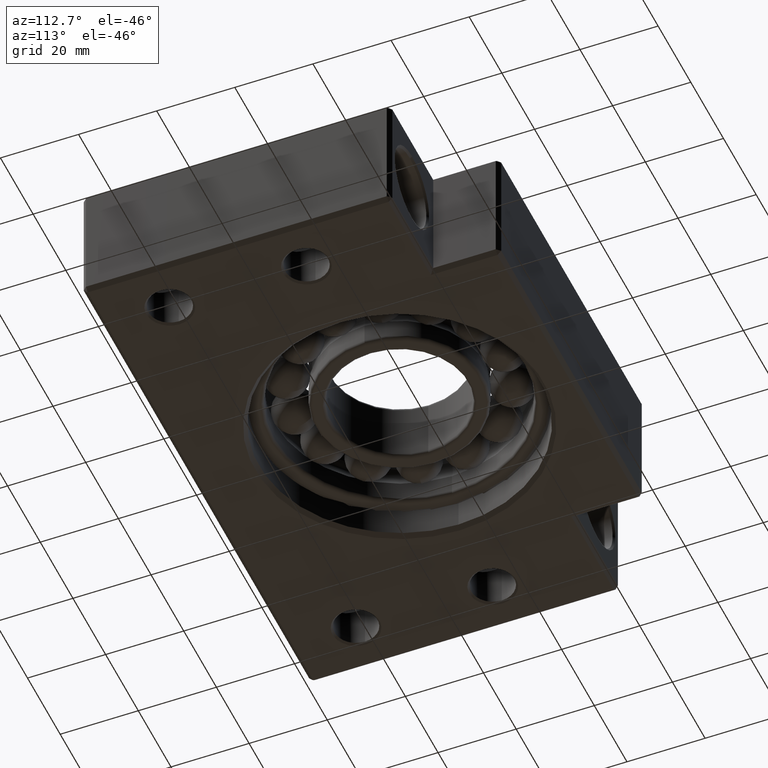
[diagram: clean part render]
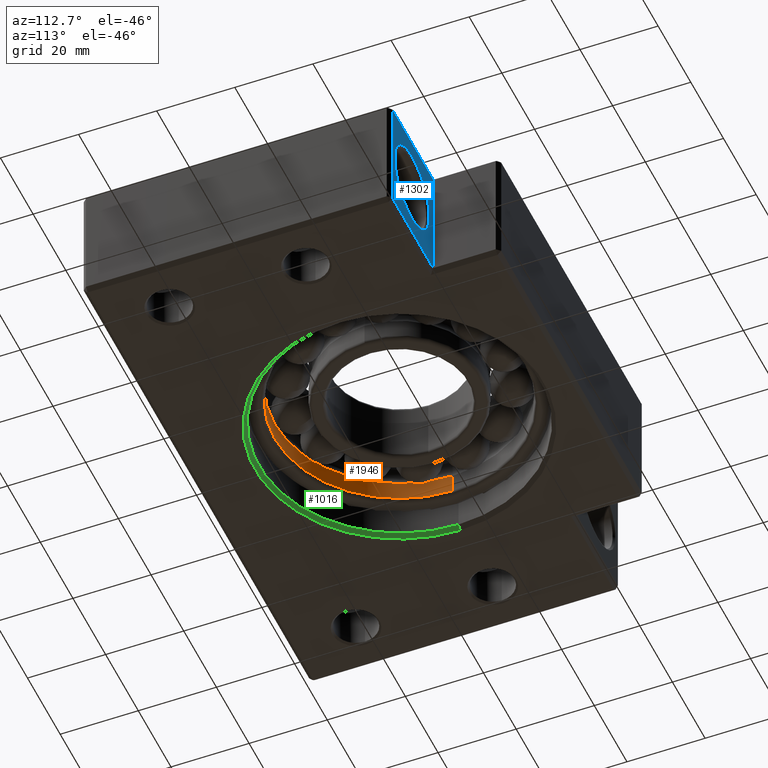
[diagram: same view with three faces highlighted in distinct colors, each labeled with its STEP entity id]
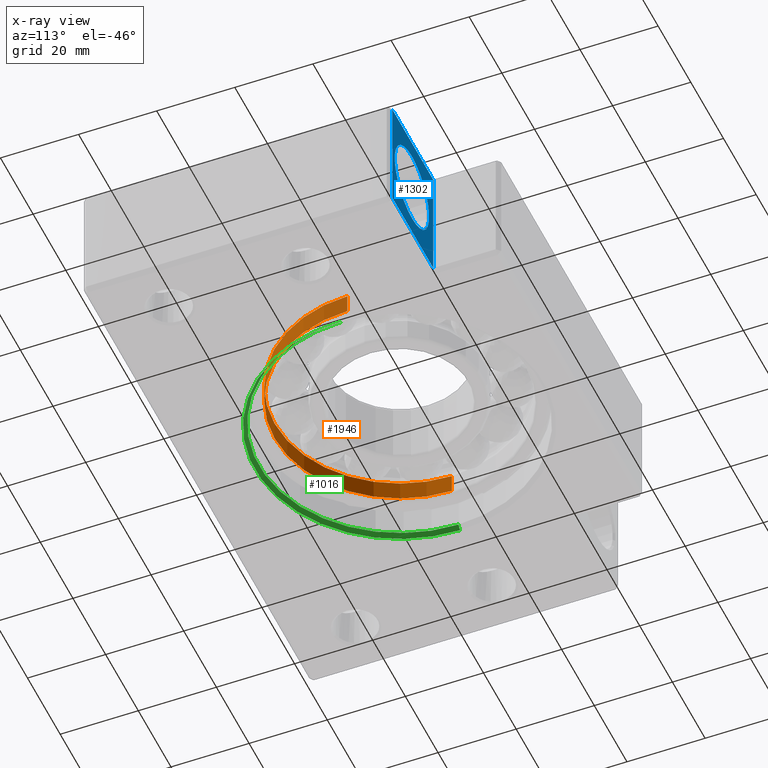
[diagram: x-ray of the same camera — body ghosted, the three highlighted faces saturated]
A machine part, auxiliary view with three faces highlighted in distinct colors.
The next image is the same camera in x-ray (body ghosted, the three faces saturated) — at least one of them is partly hidden behind the body in this view.
Their STEP definitions:

[orange] entity #1946 — the highlighted cylindrical surface (partial cylindrical patch) has radius 32 mm, axis along (-0, -0, 1).
#54 = CARTESIAN_POINT ( 'NONE',  ( -31.99999999999998600, 52.00000000000000000, -2.345207879911714900 ) ) ;
#83 = DIRECTION ( 'NONE',  ( 1.000000000000000000, 0.0000000000000000000, 0.0000000000000000000 ) ) ;
#84 = DIRECTION ( 'NONE',  ( -0.0000000000000000000, -0.0000000000000000000, 1.000000000000000000 ) ) ;
#85 = CARTESIAN_POINT ( 'NONE',  ( 1.387778780781445700E-014, 51.99999999999999300, -7.400000000000000400 ) ) ;
#86 = AXIS2_PLACEMENT_3D ( 'NONE', #85, #84, #83 ) ;
#87 = DIRECTION ( 'NONE',  ( 1.000000000000000000, 0.0000000000000000000, 0.0000000000000000000 ) ) ;
#88 = DIRECTION ( 'NONE',  ( -0.0000000000000000000, -0.0000000000000000000, 1.000000000000000000 ) ) ;
#89 = AXIS2_PLACEMENT_3D ( 'NONE', #92, #88, #87 ) ;
#90 = CYLINDRICAL_SURFACE ( 'NONE', #89, 32.00000000000000000 ) ;
#91 = CIRCLE ( 'NONE', #86, 32.00000000000000000 ) ;
#92 = CARTESIAN_POINT ( 'NONE',  ( 1.387778780781445700E-014, 51.99999999999999300, 8.839432060501899000 ) ) ;
#98 = FACE_OUTER_BOUND ( 'NONE', #1944, .T. ) ;
#136 = CARTESIAN_POINT ( 'NONE',  ( 32.00000000000001400, 51.99999999999999300, -2.345207879911714900 ) ) ;
#352 = DIRECTION ( 'NONE',  ( 1.000000000000000000, 0.0000000000000000000, 0.0000000000000000000 ) ) ;
#353 = DIRECTION ( 'NONE',  ( -0.0000000000000000000, -0.0000000000000000000, 1.000000000000000000 ) ) ;
#354 = CARTESIAN_POINT ( 'NONE',  ( 1.387778780781445700E-014, 51.99999999999999300, -2.345207879911714900 ) ) ;
#355 = AXIS2_PLACEMENT_3D ( 'NONE', #354, #353, #352 ) ;
#356 = CIRCLE ( 'NONE', #355, 32.00000000000000000 ) ;
#727 = ORIENTED_EDGE ( 'NONE', *, *, #736, .T. ) ;
#730 = VERTEX_POINT ( 'NONE', #2593 ) ;
#731 = VERTEX_POINT ( 'NONE', #2592 ) ;
#732 = ORIENTED_EDGE ( 'NONE', *, *, #2328, .T. ) ;
#734 = EDGE_CURVE ( 'NONE', #731, #1953, #2650, .T. ) ;
#735 = ORIENTED_EDGE ( 'NONE', *, *, #734, .F. ) ;
#736 = EDGE_CURVE ( 'NONE', #730, #1935, #2646, .T. ) ;
#1935 = VERTEX_POINT ( 'NONE', #54 ) ;
#1944 = EDGE_LOOP ( 'NONE', ( #1945, #727, #732, #735 ) ) ;
#1945 = ORIENTED_EDGE ( 'NONE', *, *, #1947, .F. ) ;
#1946 = ADVANCED_FACE ( 'NONE', ( #98 ), #90, .F. ) ;
#1947 = EDGE_CURVE ( 'NONE', #730, #731, #91, .T. ) ;
#1953 = VERTEX_POINT ( 'NONE', #136 ) ;
#2328 = EDGE_CURVE ( 'NONE', #1935, #1953, #356, .T. ) ;
#2592 = CARTESIAN_POINT ( 'NONE',  ( 32.00000000000001400, 51.99999999999999300, -7.400000000000000400 ) ) ;
#2593 = CARTESIAN_POINT ( 'NONE',  ( -31.99999999999998600, 52.00000000000000000, -7.400000000000000400 ) ) ;
#2643 = DIRECTION ( 'NONE',  ( -0.0000000000000000000, -0.0000000000000000000, 1.000000000000000000 ) ) ;
#2644 = VECTOR ( 'NONE', #2643, 1000.000000000000000 ) ;
#2645 = CARTESIAN_POINT ( 'NONE',  ( -31.99999999999998600, 52.00000000000000000, 8.839432060501899000 ) ) ;
#2646 = LINE ( 'NONE', #2645, #2644 ) ;
#2647 = DIRECTION ( 'NONE',  ( -0.0000000000000000000, -0.0000000000000000000, 1.000000000000000000 ) ) ;
#2648 = VECTOR ( 'NONE', #2647, 1000.000000000000000 ) ;
#2649 = CARTESIAN_POINT ( 'NONE',  ( 32.00000000000001400, 51.99999999999999300, 8.839432060501899000 ) ) ;
#2650 = LINE ( 'NONE', #2649, #2648 ) ;

[blue] entity #1302 — the highlighted planar face has unit normal (0, -1, 0).
#283 = CARTESIAN_POINT ( 'NONE',  ( 57.00000000000004300, 79.00000000000001400, 10.50000000000006400 ) ) ;
#288 = CARTESIAN_POINT ( 'NONE',  ( 57.00000000000004300, 79.00000000000001400, -10.50000000000009200 ) ) ;
#291 = DIRECTION ( 'NONE',  ( 1.000000000000000000, 0.0000000000000000000, 0.0000000000000000000 ) ) ;
#292 = DIRECTION ( 'NONE',  ( 5.337610695313246500E-016, -1.000000000000000000, 0.0000000000000000000 ) ) ;
#293 = CARTESIAN_POINT ( 'NONE',  ( 57.00000000000004300, 79.00000000000001400, -1.396097351027982600E-014 ) ) ;
#294 = AXIS2_PLACEMENT_3D ( 'NONE', #293, #292, #291 ) ;
#295 = CIRCLE ( 'NONE', #294, 10.50000000000007100 ) ;
#1288 = ORIENTED_EDGE ( 'NONE', *, *, #2028, .T. ) ;
#1291 = ORIENTED_EDGE ( 'NONE', *, *, #1292, .T. ) ;
#1292 = EDGE_CURVE ( 'NONE', #2032, #2033, #3859, .T. ) ;
#1293 = EDGE_LOOP ( 'NONE', ( #1294, #1322, #1319, #1315 ) ) ;
#1294 = ORIENTED_EDGE ( 'NONE', *, *, #1296, .F. ) ;
#1295 = VERTEX_POINT ( 'NONE', #3855 ) ;
#1296 = EDGE_CURVE ( 'NONE', #1295, #1297, #3854, .T. ) ;
#1297 = VERTEX_POINT ( 'NONE', #3850 ) ;
#1301 = EDGE_LOOP ( 'NONE', ( #1288, #1291 ) ) ;
#1302 = ADVANCED_FACE ( 'NONE', ( #3849, #3843 ), #3842, .F. ) ;
#1314 = VERTEX_POINT ( 'NONE', #3885 ) ;
#1315 = ORIENTED_EDGE ( 'NONE', *, *, #1317, .T. ) ;
#1317 = EDGE_CURVE ( 'NONE', #1314, #1297, #3878, .T. ) ;
#1318 = EDGE_CURVE ( 'NONE', #1320, #1314, #3874, .T. ) ;
#1319 = ORIENTED_EDGE ( 'NONE', *, *, #1318, .T. ) ;
#1320 = VERTEX_POINT ( 'NONE', #3869 ) ;
#1321 = EDGE_CURVE ( 'NONE', #1295, #1320, #3870, .T. ) ;
#1322 = ORIENTED_EDGE ( 'NONE', *, *, #1321, .T. ) ;
#2028 = EDGE_CURVE ( 'NONE', #2033, #2032, #295, .T. ) ;
#2032 = VERTEX_POINT ( 'NONE', #288 ) ;
#2033 = VERTEX_POINT ( 'NONE', #283 ) ;
#3837 = DIRECTION ( 'NONE',  ( 1.000000000000000000, 5.337610695313246500E-016, 0.0000000000000000000 ) ) ;
#3838 = DIRECTION ( 'NONE',  ( 5.337610695313246500E-016, -1.000000000000000000, 0.0000000000000000000 ) ) ;
#3839 = CARTESIAN_POINT ( 'NONE',  ( 70.00000000000002800, 79.00000000000001400, 16.00000000000000000 ) ) ;
#3840 = AXIS2_PLACEMENT_3D ( 'NONE', #3839, #3838, #3837 ) ;
#3842 = PLANE ( 'NONE',  #3840 ) ;
#3843 = FACE_OUTER_BOUND ( 'NONE', #1293, .T. ) ;
#3849 = FACE_BOUND ( 'NONE', #1301, .T. ) ;
#3850 = CARTESIAN_POINT ( 'NONE',  ( 44.00000000000000700, 79.00000000000000000, -14.99999999999998600 ) ) ;
#3851 = DIRECTION ( 'NONE',  ( -0.0000000000000000000, -0.0000000000000000000, -1.000000000000000000 ) ) ;
#3852 = VECTOR ( 'NONE', #3851, 1000.000000000000000 ) ;
#3853 = CARTESIAN_POINT ( 'NONE',  ( 44.00000000000000700, 79.00000000000000000, 16.00000000000000000 ) ) ;
#3854 = LINE ( 'NONE', #3853, #3852 ) ;
#3855 = CARTESIAN_POINT ( 'NONE',  ( 44.00000000000000700, 79.00000000000000000, 14.99999999999998600 ) ) ;
#3856 = DIRECTION ( 'NONE',  ( 1.000000000000000000, 0.0000000000000000000, 0.0000000000000000000 ) ) ;
#3857 = DIRECTION ( 'NONE',  ( 5.337610695313246500E-016, -1.000000000000000000, 0.0000000000000000000 ) ) ;
#3858 = AXIS2_PLACEMENT_3D ( 'NONE', #3863, #3857, #3856 ) ;
#3859 = CIRCLE ( 'NONE', #3858, 10.50000000000007100 ) ;
#3863 = CARTESIAN_POINT ( 'NONE',  ( 57.00000000000004300, 79.00000000000001400, -1.396097351027982600E-014 ) ) ;
#3869 = CARTESIAN_POINT ( 'NONE',  ( 69.00000000000001400, 79.00000000000001400, 14.99999999999998600 ) ) ;
#3870 = LINE ( 'NONE', #3930, #3929 ) ;
#3871 = DIRECTION ( 'NONE',  ( 0.0000000000000000000, 0.0000000000000000000, -1.000000000000000000 ) ) ;
#3872 = VECTOR ( 'NONE', #3871, 1000.000000000000000 ) ;
#3873 = CARTESIAN_POINT ( 'NONE',  ( 69.00000000000001400, 79.00000000000001400, 16.00000000000000000 ) ) ;
#3874 = LINE ( 'NONE', #3873, #3872 ) ;
#3875 = DIRECTION ( 'NONE',  ( -1.000000000000000000, -5.337610695313246500E-016, 0.0000000000000000000 ) ) ;
#3876 = VECTOR ( 'NONE', #3875, 1000.000000000000000 ) ;
#3877 = CARTESIAN_POINT ( 'NONE',  ( 70.00000000000002800, 79.00000000000001400, -14.99999999999998600 ) ) ;
#3878 = LINE ( 'NONE', #3877, #3876 ) ;
#3885 = CARTESIAN_POINT ( 'NONE',  ( 69.00000000000001400, 79.00000000000001400, -14.99999999999998600 ) ) ;
#3928 = DIRECTION ( 'NONE',  ( 1.000000000000000000, 5.337610695313246500E-016, 0.0000000000000000000 ) ) ;
#3929 = VECTOR ( 'NONE', #3928, 1000.000000000000000 ) ;
#3930 = CARTESIAN_POINT ( 'NONE',  ( 70.00000000000002800, 79.00000000000001400, 14.99999999999998600 ) ) ;

[green] entity #1016 — the highlighted conical surface has half-angle 45 deg.
#205 = DIRECTION ( 'NONE',  ( -0.0000000000000000000, -0.0000000000000000000, -1.000000000000000000 ) ) ;
#206 = CARTESIAN_POINT ( 'NONE',  ( 1.075587020995766200E-014, 51.99999999999999300, -15.00000000000001400 ) ) ;
#207 = AXIS2_PLACEMENT_3D ( 'NONE', #206, #205, #267 ) ;
#208 = CIRCLE ( 'NONE', #207, 36.00000000000000000 ) ;
#210 = DIRECTION ( 'NONE',  ( -0.7071067811865450200, 0.0000000000000000000, -0.7071067811865500200 ) ) ;
#211 = VECTOR ( 'NONE', #210, 1000.000000000000000 ) ;
#212 = CARTESIAN_POINT ( 'NONE',  ( -36.99999999999996400, 51.99999999999999300, -16.00000000000000000 ) ) ;
#213 = LINE ( 'NONE', #212, #211 ) ;
#267 = DIRECTION ( 'NONE',  ( 1.000000000000000000, 0.0000000000000000000, 0.0000000000000000000 ) ) ;
#1003 = EDGE_LOOP ( 'NONE', ( #1010, #1015, #1014, #1050 ) ) ;
#1010 = ORIENTED_EDGE ( 'NONE', *, *, #2009, .F. ) ;
#1013 = VERTEX_POINT ( 'NONE', #2810 ) ;
#1014 = ORIENTED_EDGE ( 'NONE', *, *, #1041, .F. ) ;
#1015 = ORIENTED_EDGE ( 'NONE', *, *, #1044, .T. ) ;
#1016 = ADVANCED_FACE ( 'NONE', ( #2809 ), #3141, .F. ) ;
#1034 = VERTEX_POINT ( 'NONE', #3115 ) ;
#1035 = VERTEX_POINT ( 'NONE', #3110 ) ;
#1037 = VERTEX_POINT ( 'NONE', #3109 ) ;
#1041 = EDGE_CURVE ( 'NONE', #1013, #1035, #3166, .T. ) ;
#1044 = EDGE_CURVE ( 'NONE', #1034, #1035, #3160, .T. ) ;
#1050 = ORIENTED_EDGE ( 'NONE', *, *, #2008, .F. ) ;
#2008 = EDGE_CURVE ( 'NONE', #1037, #1013, #213, .T. ) ;
#2009 = EDGE_CURVE ( 'NONE', #1034, #1037, #208, .T. ) ;
#2809 = FACE_OUTER_BOUND ( 'NONE', #1003, .T. ) ;
#2810 = CARTESIAN_POINT ( 'NONE',  ( -36.99999999999996400, 51.99999999999999300, -16.00000000000000000 ) ) ;
#3109 = CARTESIAN_POINT ( 'NONE',  ( -35.99999999999998600, 51.99999999999999300, -15.00000000000001400 ) ) ;
#3110 = CARTESIAN_POINT ( 'NONE',  ( 36.99999999999999300, 52.00000000000000000, -16.00000000000000000 ) ) ;
#3115 = CARTESIAN_POINT ( 'NONE',  ( 36.00000000000001400, 52.00000000000000000, -15.00000000000001400 ) ) ;
#3137 = DIRECTION ( 'NONE',  ( -1.000000000000000000, 0.0000000000000000000, 0.0000000000000000000 ) ) ;
#3138 = DIRECTION ( 'NONE',  ( -0.0000000000000000000, -0.0000000000000000000, -1.000000000000000000 ) ) ;
#3139 = CARTESIAN_POINT ( 'NONE',  ( 1.075587020995766200E-014, 51.99999999999999300, -16.00000000000000000 ) ) ;
#3140 = AXIS2_PLACEMENT_3D ( 'NONE', #3139, #3138, #3137 ) ;
#3141 = CONICAL_SURFACE ( 'NONE', #3140, 36.99999999999997900, 0.7853981633974447300 ) ;
#3157 = DIRECTION ( 'NONE',  ( 0.7071067811865450200, 8.659274570719324600E-017, -0.7071067811865500200 ) ) ;
#3158 = VECTOR ( 'NONE', #3157, 1000.000000000000000 ) ;
#3159 = CARTESIAN_POINT ( 'NONE',  ( 36.99999999999999300, 52.00000000000000000, -16.00000000000000000 ) ) ;
#3160 = LINE ( 'NONE', #3159, #3158 ) ;
#3162 = DIRECTION ( 'NONE',  ( 1.000000000000000000, 0.0000000000000000000, 0.0000000000000000000 ) ) ;
#3163 = DIRECTION ( 'NONE',  ( -0.0000000000000000000, 0.0000000000000000000, 1.000000000000000000 ) ) ;
#3164 = CARTESIAN_POINT ( 'NONE',  ( 1.075587020995766200E-014, 51.99999999999999300, -16.00000000000000000 ) ) ;
#3165 = AXIS2_PLACEMENT_3D ( 'NONE', #3164, #3163, #3162 ) ;
#3166 = CIRCLE ( 'NONE', #3165, 36.99999999999997900 ) ;